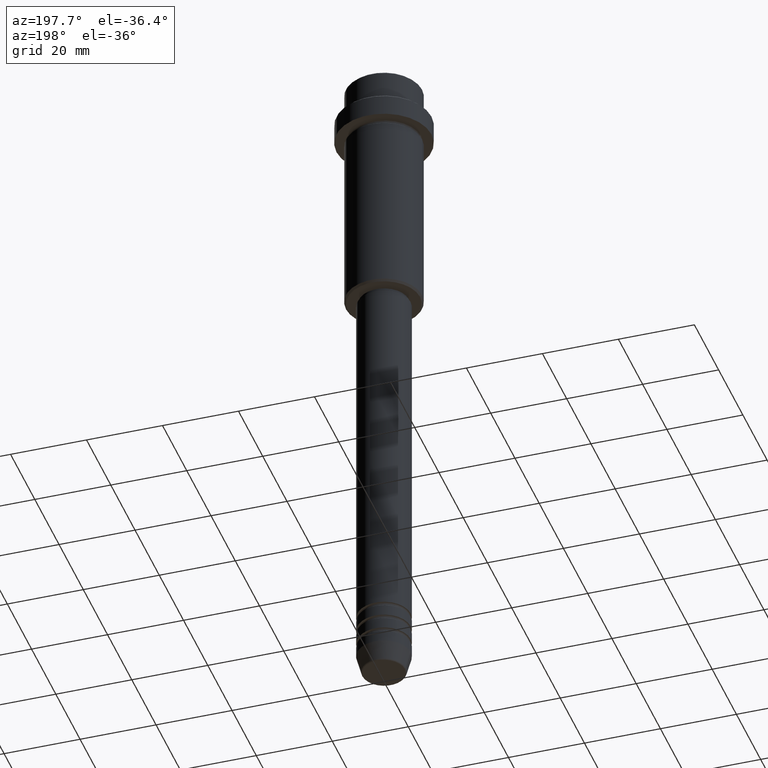
[diagram: clean part render]
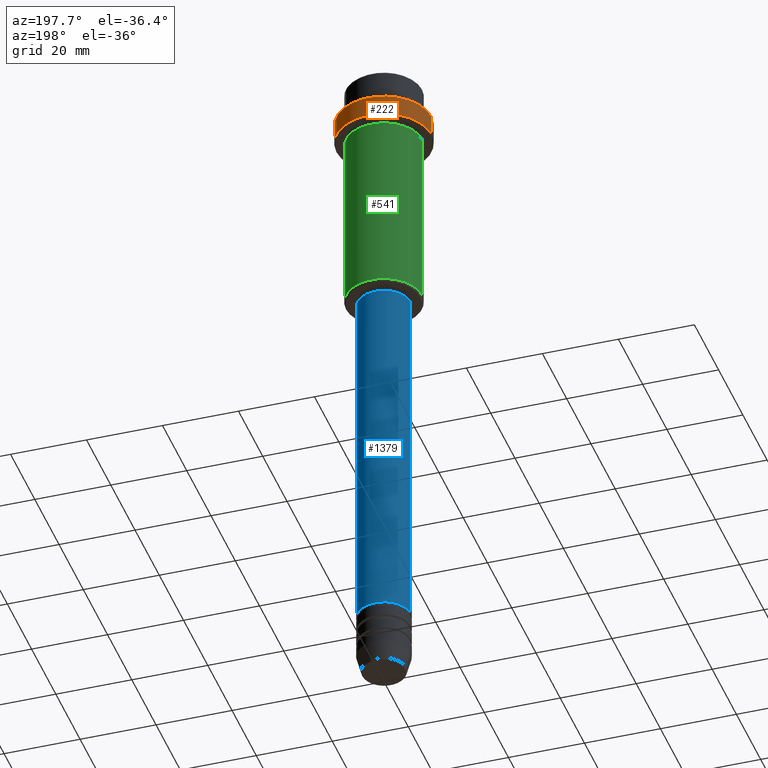
[diagram: same view with three faces highlighted in distinct colors, each labeled with its STEP entity id]
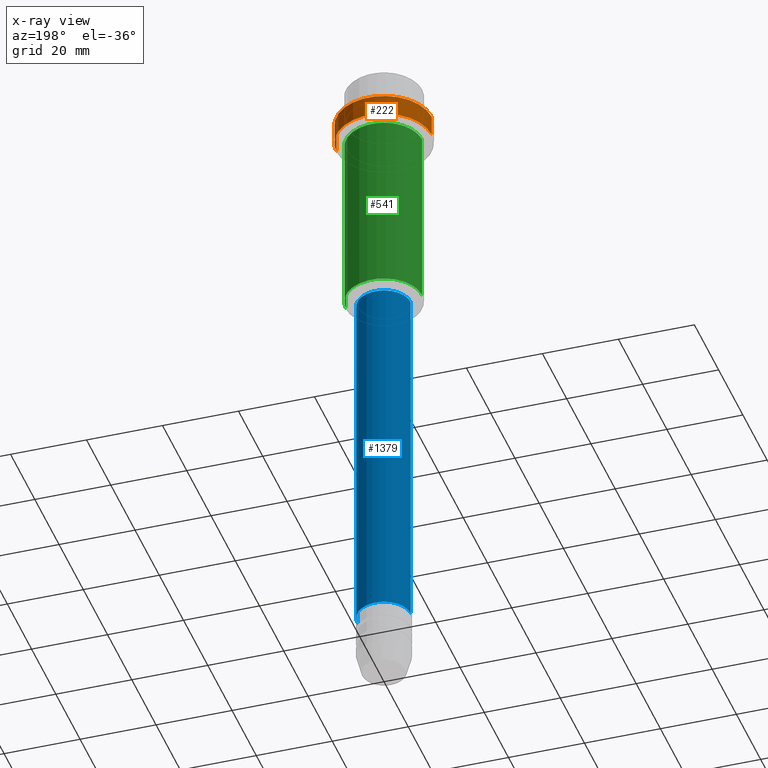
[diagram: x-ray of the same camera — body ghosted, the three highlighted faces saturated]
A machine part, auxiliary view with three faces highlighted in distinct colors.
The next image is the same camera in x-ray (body ghosted, the three faces saturated) — at least one of them is partly hidden behind the body in this view.
Their STEP definitions:

[orange] entity #222 — the highlighted cylindrical surface (partial cylindrical patch) has radius 12.5 mm, axis along (-0, -0, 1).
#27 = AXIS2_PLACEMENT_3D ( 'NONE', #379, #1246, #1355 ) ;
#30 = FACE_OUTER_BOUND ( 'NONE', #944, .T. ) ;
#114 = VECTOR ( 'NONE', #485, 1000.000000000000000 ) ;
#132 = VERTEX_POINT ( 'NONE', #220 ) ;
#176 = EDGE_CURVE ( 'NONE', #1106, #132, #555, .T. ) ;
#220 = CARTESIAN_POINT ( 'NONE',  ( -12.50000000000000000, 1.530808498934191521E-15, -9.500000000000007105 ) ) ;
#222 = ADVANCED_FACE ( 'NONE', ( #30 ), #906, .T. ) ;
#379 = CARTESIAN_POINT ( 'NONE',  ( 0.000000000000000000, 0.000000000000000000, 0.000000000000000000 ) ) ;
#421 = CARTESIAN_POINT ( 'NONE',  ( 12.50000000000000000, 0.000000000000000000, -15.00000000000000178 ) ) ;
#434 = CARTESIAN_POINT ( 'NONE',  ( 0.000000000000000000, 0.000000000000000000, -15.00000000000000178 ) ) ;
#442 = CARTESIAN_POINT ( 'NONE',  ( 12.50000000000000000, 0.000000000000000000, 0.000000000000000000 ) ) ;
#485 = DIRECTION ( 'NONE',  ( -0.000000000000000000, -0.000000000000000000, 1.000000000000000000 ) ) ;
#524 = EDGE_CURVE ( 'NONE', #132, #1401, #892, .T. ) ;
#532 = EDGE_CURVE ( 'NONE', #586, #1401, #861, .T. ) ;
#540 = DIRECTION ( 'NONE',  ( 1.000000000000000000, 0.000000000000000000, 0.000000000000000000 ) ) ;
#554 = ORIENTED_EDGE ( 'NONE', *, *, #524, .T. ) ;
#555 = LINE ( 'NONE', #807, #114 ) ;
#561 = ORIENTED_EDGE ( 'NONE', *, *, #176, .T. ) ;
#586 = VERTEX_POINT ( 'NONE', #421 ) ;
#616 = ORIENTED_EDGE ( 'NONE', *, *, #532, .F. ) ;
#666 = DIRECTION ( 'NONE',  ( -0.000000000000000000, -0.000000000000000000, 1.000000000000000000 ) ) ;
#679 = VECTOR ( 'NONE', #1408, 1000.000000000000000 ) ;
#738 = CARTESIAN_POINT ( 'NONE',  ( 12.50000000000000000, 0.000000000000000000, -9.500000000000007105 ) ) ;
#760 = CARTESIAN_POINT ( 'NONE',  ( -12.50000000000000000, 1.530808498934191521E-15, -15.00000000000000178 ) ) ;
#773 = AXIS2_PLACEMENT_3D ( 'NONE', #889, #1213, #1413 ) ;
#774 = AXIS2_PLACEMENT_3D ( 'NONE', #434, #666, #540 ) ;
#807 = CARTESIAN_POINT ( 'NONE',  ( -12.50000000000000000, 1.530808498934191521E-15, 0.000000000000000000 ) ) ;
#861 = LINE ( 'NONE', #442, #679 ) ;
#889 = CARTESIAN_POINT ( 'NONE',  ( 0.000000000000000000, 0.000000000000000000, -9.500000000000007105 ) ) ;
#892 = CIRCLE ( 'NONE', #773, 12.50000000000000000 ) ;
#906 = CYLINDRICAL_SURFACE ( 'NONE', #27, 12.50000000000000000 ) ;
#944 = EDGE_LOOP ( 'NONE', ( #1113, #561, #554, #616 ) ) ;
#1052 = EDGE_CURVE ( 'NONE', #586, #1106, #1289, .T. ) ;
#1106 = VERTEX_POINT ( 'NONE', #760 ) ;
#1113 = ORIENTED_EDGE ( 'NONE', *, *, #1052, .T. ) ;
#1213 = DIRECTION ( 'NONE',  ( 0.000000000000000000, 0.000000000000000000, -1.000000000000000000 ) ) ;
#1246 = DIRECTION ( 'NONE',  ( -0.000000000000000000, -0.000000000000000000, 1.000000000000000000 ) ) ;
#1289 = CIRCLE ( 'NONE', #774, 12.50000000000000000 ) ;
#1355 = DIRECTION ( 'NONE',  ( 1.000000000000000000, 0.000000000000000000, 0.000000000000000000 ) ) ;
#1401 = VERTEX_POINT ( 'NONE', #738 ) ;
#1408 = DIRECTION ( 'NONE',  ( -0.000000000000000000, -0.000000000000000000, 1.000000000000000000 ) ) ;
#1413 = DIRECTION ( 'NONE',  ( 1.000000000000000000, 0.000000000000000000, 0.000000000000000000 ) ) ;

[blue] entity #1379 — the highlighted cylindrical surface (edge-blend (fillet) strip) has radius 7 mm, axis along (-0, -0, 1).
#17 = DIRECTION ( 'NONE',  ( -0.000000000000000000, -0.000000000000000000, 1.000000000000000000 ) ) ;
#49 = LINE ( 'NONE', #593, #805 ) ;
#55 = AXIS2_PLACEMENT_3D ( 'NONE', #428, #1321, #96 ) ;
#79 = ORIENTED_EDGE ( 'NONE', *, *, #961, .F. ) ;
#85 = DIRECTION ( 'NONE',  ( -0.000000000000000000, -0.000000000000000000, 1.000000000000000000 ) ) ;
#96 = DIRECTION ( 'NONE',  ( 1.000000000000000000, 0.000000000000000000, 0.000000000000000000 ) ) ;
#125 = ORIENTED_EDGE ( 'NONE', *, *, #321, .F. ) ;
#153 = VERTEX_POINT ( 'NONE', #1348 ) ;
#216 = LINE ( 'NONE', #534, #1002 ) ;
#249 = ORIENTED_EDGE ( 'NONE', *, *, #1414, .T. ) ;
#291 = EDGE_LOOP ( 'NONE', ( #249, #1175, #79, #125 ) ) ;
#317 = DIRECTION ( 'NONE',  ( -0.000000000000000000, -0.000000000000000000, 1.000000000000000000 ) ) ;
#321 = EDGE_CURVE ( 'NONE', #339, #153, #216, .T. ) ;
#339 = VERTEX_POINT ( 'NONE', #638 ) ;
#428 = CARTESIAN_POINT ( 'NONE',  ( 0.000000000000000000, 0.000000000000000000, -162.9999999999998579 ) ) ;
#431 = AXIS2_PLACEMENT_3D ( 'NONE', #987, #17, #786 ) ;
#489 = DIRECTION ( 'NONE',  ( -0.000000000000000000, -0.000000000000000000, 1.000000000000000000 ) ) ;
#498 = CARTESIAN_POINT ( 'NONE',  ( 0.000000000000000000, 0.000000000000000000, 0.000000000000000000 ) ) ;
#534 = CARTESIAN_POINT ( 'NONE',  ( 7.000000000000000000, 0.000000000000000000, 0.000000000000000000 ) ) ;
#593 = CARTESIAN_POINT ( 'NONE',  ( -7.000000000000000000, 8.572527594031473190E-16, 0.000000000000000000 ) ) ;
#638 = CARTESIAN_POINT ( 'NONE',  ( 7.000000000000000000, 0.000000000000000000, -162.9999999999998579 ) ) ;
#658 = CIRCLE ( 'NONE', #55, 7.000000000000000000 ) ;
#746 = CARTESIAN_POINT ( 'NONE',  ( -7.000000000000000000, 8.572527594031473190E-16, -66.00000000000000000 ) ) ;
#755 = FACE_OUTER_BOUND ( 'NONE', #291, .T. ) ;
#786 = DIRECTION ( 'NONE',  ( 1.000000000000000000, 0.000000000000000000, 0.000000000000000000 ) ) ;
#805 = VECTOR ( 'NONE', #489, 1000.000000000000000 ) ;
#922 = AXIS2_PLACEMENT_3D ( 'NONE', #498, #317, #977 ) ;
#961 = EDGE_CURVE ( 'NONE', #153, #1359, #1049, .T. ) ;
#977 = DIRECTION ( 'NONE',  ( 1.000000000000000000, 0.000000000000000000, 0.000000000000000000 ) ) ;
#987 = CARTESIAN_POINT ( 'NONE',  ( 0.000000000000000000, 0.000000000000000000, -66.00000000000000000 ) ) ;
#993 = VERTEX_POINT ( 'NONE', #1182 ) ;
#1002 = VECTOR ( 'NONE', #85, 1000.000000000000000 ) ;
#1049 = CIRCLE ( 'NONE', #431, 7.000000000000000000 ) ;
#1066 = CYLINDRICAL_SURFACE ( 'NONE', #922, 7.000000000000000000 ) ;
#1175 = ORIENTED_EDGE ( 'NONE', *, *, #1294, .T. ) ;
#1182 = CARTESIAN_POINT ( 'NONE',  ( -7.000000000000000000, 8.572527594031473190E-16, -162.9999999999998579 ) ) ;
#1294 = EDGE_CURVE ( 'NONE', #993, #1359, #49, .T. ) ;
#1321 = DIRECTION ( 'NONE',  ( -0.000000000000000000, -0.000000000000000000, 1.000000000000000000 ) ) ;
#1348 = CARTESIAN_POINT ( 'NONE',  ( 7.000000000000000000, 0.000000000000000000, -66.00000000000000000 ) ) ;
#1359 = VERTEX_POINT ( 'NONE', #746 ) ;
#1379 = ADVANCED_FACE ( 'NONE', ( #755 ), #1066, .T. ) ;
#1414 = EDGE_CURVE ( 'NONE', #339, #993, #658, .T. ) ;

[green] entity #541 — the highlighted cylindrical surface (partial cylindrical patch) has radius 10 mm, axis along (-0, -0, 1).
#109 = LINE ( 'NONE', #791, #545 ) ;
#110 = CARTESIAN_POINT ( 'NONE',  ( 10.00000000000000000, 0.000000000000000000, -16.00000000000000000 ) ) ;
#129 = DIRECTION ( 'NONE',  ( -0.000000000000000000, -0.000000000000000000, 1.000000000000000000 ) ) ;
#217 = DIRECTION ( 'NONE',  ( -0.000000000000000000, -0.000000000000000000, 1.000000000000000000 ) ) ;
#295 = ORIENTED_EDGE ( 'NONE', *, *, #581, .F. ) ;
#303 = VECTOR ( 'NONE', #217, 1000.000000000000000 ) ;
#312 = VERTEX_POINT ( 'NONE', #1084 ) ;
#342 = DIRECTION ( 'NONE',  ( -0.000000000000000000, -0.000000000000000000, 1.000000000000000000 ) ) ;
#385 = DIRECTION ( 'NONE',  ( -0.000000000000000000, -0.000000000000000000, 1.000000000000000000 ) ) ;
#447 = VERTEX_POINT ( 'NONE', #1417 ) ;
#452 = DIRECTION ( 'NONE',  ( -1.000000000000000000, 0.000000000000000000, 0.000000000000000000 ) ) ;
#454 = AXIS2_PLACEMENT_3D ( 'NONE', #754, #1390, #603 ) ;
#463 = CARTESIAN_POINT ( 'NONE',  ( 0.000000000000000000, 0.000000000000000000, -64.50000000000000000 ) ) ;
#535 = LINE ( 'NONE', #1416, #303 ) ;
#541 = ADVANCED_FACE ( 'NONE', ( #659 ), #854, .T. ) ;
#545 = VECTOR ( 'NONE', #342, 1000.000000000000000 ) ;
#578 = CARTESIAN_POINT ( 'NONE',  ( -10.00000000000000000, 1.224646799147353256E-15, -16.00000000000000000 ) ) ;
#581 = EDGE_CURVE ( 'NONE', #1386, #790, #1399, .T. ) ;
#603 = DIRECTION ( 'NONE',  ( 1.000000000000000000, 0.000000000000000000, 0.000000000000000000 ) ) ;
#659 = FACE_OUTER_BOUND ( 'NONE', #1218, .T. ) ;
#680 = CIRCLE ( 'NONE', #1338, 10.00000000000000000 ) ;
#732 = EDGE_CURVE ( 'NONE', #447, #790, #535, .T. ) ;
#754 = CARTESIAN_POINT ( 'NONE',  ( 0.000000000000000000, 0.000000000000000000, 0.000000000000000000 ) ) ;
#790 = VERTEX_POINT ( 'NONE', #578 ) ;
#791 = CARTESIAN_POINT ( 'NONE',  ( 10.00000000000000000, 0.000000000000000000, 0.000000000000000000 ) ) ;
#835 = EDGE_CURVE ( 'NONE', #312, #1386, #109, .T. ) ;
#854 = CYLINDRICAL_SURFACE ( 'NONE', #454, 10.00000000000000000 ) ;
#862 = AXIS2_PLACEMENT_3D ( 'NONE', #946, #385, #1177 ) ;
#931 = ORIENTED_EDGE ( 'NONE', *, *, #951, .T. ) ;
#946 = CARTESIAN_POINT ( 'NONE',  ( 0.000000000000000000, 0.000000000000000000, -16.00000000000000000 ) ) ;
#951 = EDGE_CURVE ( 'NONE', #312, #447, #680, .T. ) ;
#1069 = ORIENTED_EDGE ( 'NONE', *, *, #732, .T. ) ;
#1084 = CARTESIAN_POINT ( 'NONE',  ( 10.00000000000000000, 0.000000000000000000, -64.50000000000000000 ) ) ;
#1177 = DIRECTION ( 'NONE',  ( 1.000000000000000000, 0.000000000000000000, 0.000000000000000000 ) ) ;
#1218 = EDGE_LOOP ( 'NONE', ( #931, #1069, #295, #1280 ) ) ;
#1280 = ORIENTED_EDGE ( 'NONE', *, *, #835, .F. ) ;
#1338 = AXIS2_PLACEMENT_3D ( 'NONE', #463, #129, #452 ) ;
#1386 = VERTEX_POINT ( 'NONE', #110 ) ;
#1390 = DIRECTION ( 'NONE',  ( -0.000000000000000000, -0.000000000000000000, 1.000000000000000000 ) ) ;
#1399 = CIRCLE ( 'NONE', #862, 10.00000000000000000 ) ;
#1416 = CARTESIAN_POINT ( 'NONE',  ( -10.00000000000000000, 1.224646799147353256E-15, 0.000000000000000000 ) ) ;
#1417 = CARTESIAN_POINT ( 'NONE',  ( -10.00000000000000000, 1.224646799147353256E-15, -64.50000000000000000 ) ) ;